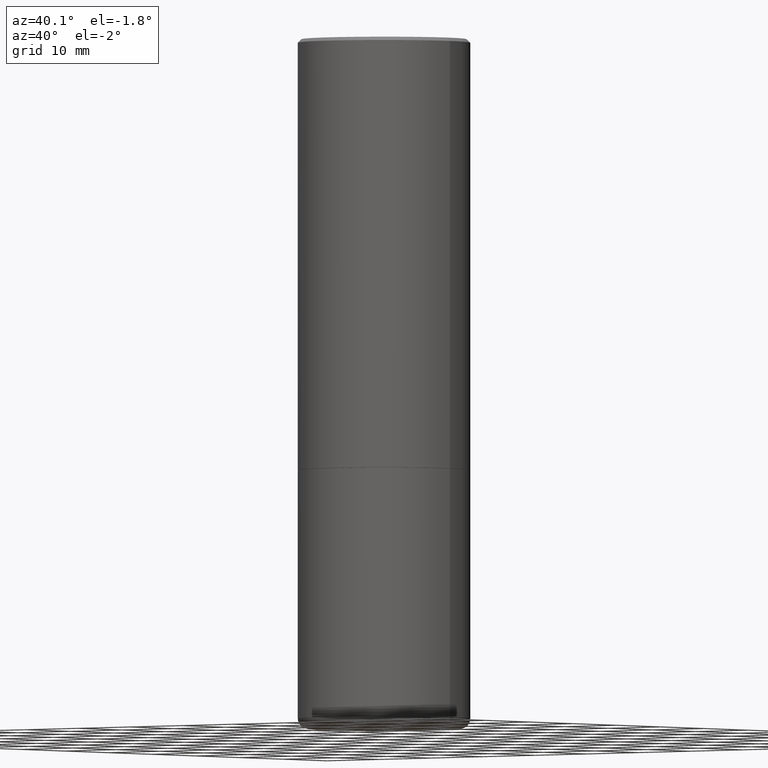
[diagram: clean part render]
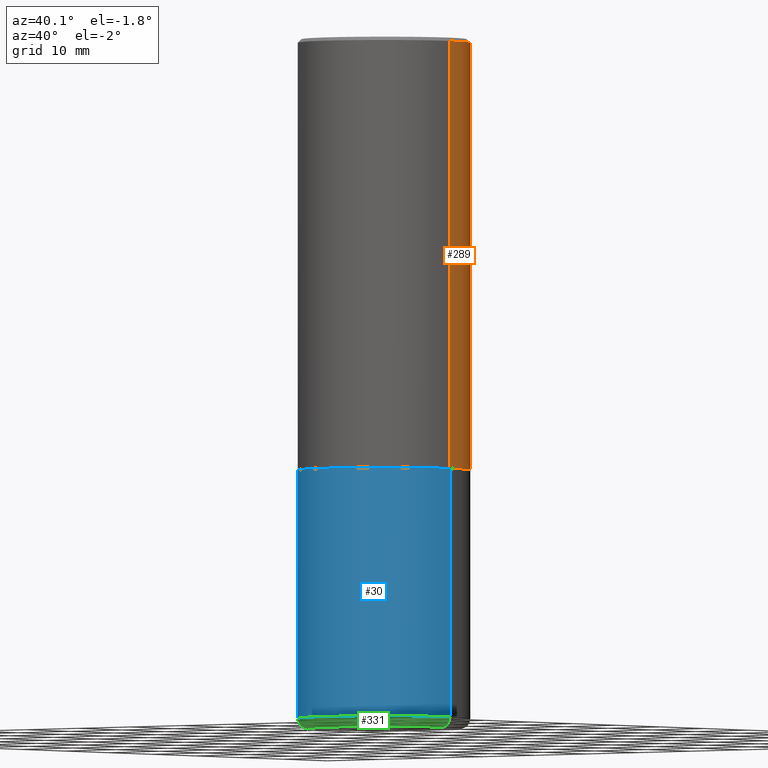
[diagram: same view with three faces highlighted in distinct colors, each labeled with its STEP entity id]
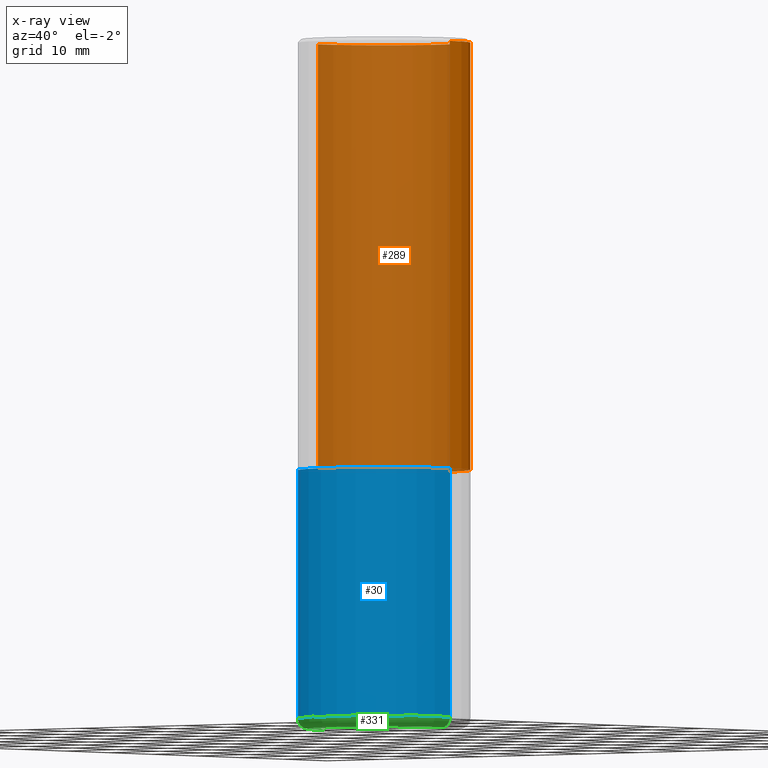
[diagram: x-ray of the same camera — body ghosted, the three highlighted faces saturated]
A machine part, auxiliary view with three faces highlighted in distinct colors.
The next image is the same camera in x-ray (body ghosted, the three faces saturated) — at least one of them is partly hidden behind the body in this view.
Their STEP definitions:

[orange] entity #289 — the highlighted cylindrical surface (partial cylindrical patch) has radius 12.7 mm, axis along (-0, 0, 1).
#17 = ORIENTED_EDGE ( 'NONE', *, *, #19, .T. ) ;
#19 = EDGE_CURVE ( 'NONE', #321, #160, #171, .T. ) ;
#23 = VERTEX_POINT ( 'NONE', #308 ) ;
#43 = CARTESIAN_POINT ( 'NONE',  ( 6.111226546656657010E-29, -8.725211865769021935E-15, -2.499000000000000110 ) ) ;
#125 = DIRECTION ( 'NONE',  ( 1.000000000000000000, -6.982962677686266711E-15, 0.000000000000000000 ) ) ;
#131 = CARTESIAN_POINT ( 'NONE',  ( 4.890937612370301184E-31, -6.982962677686329819E-17, -0.02000000000000011144 ) ) ;
#144 = ORIENTED_EDGE ( 'NONE', *, *, #253, .T. ) ;
#160 = VERTEX_POINT ( 'NONE', #394 ) ;
#164 = ORIENTED_EDGE ( 'NONE', *, *, #390, .F. ) ;
#165 = DIRECTION ( 'NONE',  ( -2.445468806185136597E-29, 3.491481338843145583E-15, 1.000000000000000000 ) ) ;
#170 = DIRECTION ( 'NONE',  ( -2.445468806185136877E-29, 3.491481338843145188E-15, 1.000000000000000000 ) ) ;
#171 = CIRCLE ( 'NONE', #417, 0.5000000000000000000 ) ;
#174 = DIRECTION ( 'NONE',  ( 1.000000000000000000, -6.982962677686265133E-15, 0.000000000000000000 ) ) ;
#197 = ORIENTED_EDGE ( 'NONE', *, *, #238, .F. ) ;
#231 = CYLINDRICAL_SURFACE ( 'NONE', #275, 0.4999999999999998335 ) ;
#238 = EDGE_CURVE ( 'NONE', #23, #395, #424, .T. ) ;
#245 = LINE ( 'NONE', #337, #428 ) ;
#253 = EDGE_CURVE ( 'NONE', #160, #395, #330, .T. ) ;
#265 = CARTESIAN_POINT ( 'NONE',  ( 0.5000000000000000000, -1.221669320461215371E-14, -2.499000000000000110 ) ) ;
#275 = AXIS2_PLACEMENT_3D ( 'NONE', #430, #366, #322 ) ;
#282 = AXIS2_PLACEMENT_3D ( 'NONE', #131, #165, #125 ) ;
#283 = EDGE_LOOP ( 'NONE', ( #17, #144, #197, #164 ) ) ;
#289 = ADVANCED_FACE ( 'NONE', ( #438 ), #231, .T. ) ;
#308 = CARTESIAN_POINT ( 'NONE',  ( 0.4999999999999997224, -3.500078625662627502E-15, -0.02000000000000011144 ) ) ;
#321 = VERTEX_POINT ( 'NONE', #265 ) ;
#322 = DIRECTION ( 'NONE',  ( 1.000000000000000000, -6.982962677686267499E-15, 4.876176775795936353E-29 ) ) ;
#330 = LINE ( 'NONE', #357, #338 ) ;
#337 = CARTESIAN_POINT ( 'NONE',  ( 0.4999999999999998335, -3.491481338843132566E-15, 2.438088387897967336E-29 ) ) ;
#338 = VECTOR ( 'NONE', #353, 39.37007874015748143 ) ;
#353 = DIRECTION ( 'NONE',  ( -2.445468806185136877E-29, 3.491481338843145188E-15, 1.000000000000000000 ) ) ;
#357 = CARTESIAN_POINT ( 'NONE',  ( -0.4999999999999998335, 3.552713678800499746E-15, -2.459467545127452330E-29 ) ) ;
#366 = DIRECTION ( 'NONE',  ( -2.445468806185136597E-29, 3.491481338843145583E-15, 1.000000000000000000 ) ) ;
#383 = CARTESIAN_POINT ( 'NONE',  ( -0.4999999999999997224, 3.421651712066268085E-15, -0.02000000000000011144 ) ) ;
#390 = EDGE_CURVE ( 'NONE', #321, #23, #245, .T. ) ;
#394 = CARTESIAN_POINT ( 'NONE',  ( -0.5000000000000000000, -8.448070674724411945E-16, -2.499000000000000110 ) ) ;
#395 = VERTEX_POINT ( 'NONE', #383 ) ;
#412 = DIRECTION ( 'NONE',  ( -2.445468806185136597E-29, 3.491481338843145583E-15, 1.000000000000000000 ) ) ;
#417 = AXIS2_PLACEMENT_3D ( 'NONE', #43, #412, #174 ) ;
#424 = CIRCLE ( 'NONE', #282, 0.4999999999999997224 ) ;
#428 = VECTOR ( 'NONE', #170, 39.37007874015748143 ) ;
#430 = CARTESIAN_POINT ( 'NONE',  ( 0.000000000000000000, 0.000000000000000000, 0.000000000000000000 ) ) ;
#438 = FACE_OUTER_BOUND ( 'NONE', #283, .T. ) ;

[blue] entity #30 — the highlighted cylindrical surface (partial cylindrical patch) has radius 12.7 mm, axis along (-0, 0, 1).
#4 = CARTESIAN_POINT ( 'NONE',  ( 0.000000000000000000, 0.000000000000000000, 0.000000000000000000 ) ) ;
#14 = ORIENTED_EDGE ( 'NONE', *, *, #374, .T. ) ;
#15 = EDGE_CURVE ( 'NONE', #224, #184, #84, .T. ) ;
#30 = ADVANCED_FACE ( 'NONE', ( #239 ), #370, .T. ) ;
#56 = ORIENTED_EDGE ( 'NONE', *, *, #128, .F. ) ;
#82 = DIRECTION ( 'NONE',  ( -2.445468806185136877E-29, 3.491481338843145188E-15, 1.000000000000000000 ) ) ;
#84 = CIRCLE ( 'NONE', #354, 0.5000000000000000000 ) ;
#91 = CARTESIAN_POINT ( 'NONE',  ( -0.5000000000000000000, -7.689856232274430126E-15, -2.500000000000000000 ) ) ;
#107 = LINE ( 'NONE', #116, #213 ) ;
#116 = CARTESIAN_POINT ( 'NONE',  ( 0.4999999999999998335, -3.491481338843132566E-15, 2.438088387897967336E-29 ) ) ;
#128 = EDGE_CURVE ( 'NONE', #340, #224, #148, .T. ) ;
#132 = CARTESIAN_POINT ( 'NONE',  ( 0.5000000000000000000, -1.222018468595099830E-14, -2.500000000000000000 ) ) ;
#138 = CARTESIAN_POINT ( 'NONE',  ( 6.113672015462842613E-29, -8.728703347107864943E-15, -2.500000000000000000 ) ) ;
#140 = DIRECTION ( 'NONE',  ( -2.445468806185136877E-29, 3.491481338843145188E-15, 1.000000000000000000 ) ) ;
#146 = DIRECTION ( 'NONE',  ( -2.445468806185136597E-29, 3.491481338843145583E-15, 1.000000000000000000 ) ) ;
#148 = LINE ( 'NONE', #386, #292 ) ;
#152 = ORIENTED_EDGE ( 'NONE', *, *, #294, .T. ) ;
#166 = DIRECTION ( 'NONE',  ( 1.000000000000000000, -6.982962677686265922E-15, 0.000000000000000000 ) ) ;
#184 = VERTEX_POINT ( 'NONE', #132 ) ;
#186 = AXIS2_PLACEMENT_3D ( 'NONE', #362, #333, #166 ) ;
#213 = VECTOR ( 'NONE', #140, 39.37007874015748143 ) ;
#224 = VERTEX_POINT ( 'NONE', #91 ) ;
#235 = ORIENTED_EDGE ( 'NONE', *, *, #15, .F. ) ;
#239 = FACE_OUTER_BOUND ( 'NONE', #437, .T. ) ;
#240 = VERTEX_POINT ( 'NONE', #324 ) ;
#267 = DIRECTION ( 'NONE',  ( -2.445468806185136597E-29, 3.491481338843145583E-15, 1.000000000000000000 ) ) ;
#277 = DIRECTION ( 'NONE',  ( 1.000000000000000000, -6.982962677686267499E-15, 4.876176775795936353E-29 ) ) ;
#292 = VECTOR ( 'NONE', #82, 39.37007874015748143 ) ;
#294 = EDGE_CURVE ( 'NONE', #340, #240, #397, .T. ) ;
#295 = AXIS2_PLACEMENT_3D ( 'NONE', #4, #146, #277 ) ;
#324 = CARTESIAN_POINT ( 'NONE',  ( 0.4999999999999997780, -1.724791781388512421E-14, -3.939999999999999947 ) ) ;
#333 = DIRECTION ( 'NONE',  ( -2.445468806185136597E-29, 3.491481338843145583E-15, 1.000000000000000000 ) ) ;
#339 = DIRECTION ( 'NONE',  ( 1.000000000000000000, -6.982962677686269077E-15, 0.000000000000000000 ) ) ;
#340 = VERTEX_POINT ( 'NONE', #381 ) ;
#354 = AXIS2_PLACEMENT_3D ( 'NONE', #138, #267, #339 ) ;
#362 = CARTESIAN_POINT ( 'NONE',  ( 9.635147096369438236E-29, -1.375643647504199401E-14, -3.939999999999999947 ) ) ;
#370 = CYLINDRICAL_SURFACE ( 'NONE', #295, 0.4999999999999998335 ) ;
#374 = EDGE_CURVE ( 'NONE', #240, #184, #107, .T. ) ;
#381 = CARTESIAN_POINT ( 'NONE',  ( -0.4999999999999997780, -1.020372279624149466E-14, -3.939999999999999947 ) ) ;
#386 = CARTESIAN_POINT ( 'NONE',  ( -0.4999999999999998335, 3.552713678800499746E-15, -2.459467545127452330E-29 ) ) ;
#397 = CIRCLE ( 'NONE', #186, 0.4999999999999997780 ) ;
#437 = EDGE_LOOP ( 'NONE', ( #56, #152, #14, #235 ) ) ;

[green] entity #331 — the highlighted toroidal blend (fillet) surface has major radius 11.176 mm and minor (blend) radius 1.524 mm.
#20 = EDGE_LOOP ( 'NONE', ( #371, #120, #74, #139 ) ) ;
#28 = CIRCLE ( 'NONE', #129, 0.05999999999999976880 ) ;
#42 = DIRECTION ( 'NONE',  ( 1.000000000000000000, -6.982962677686265922E-15, 0.000000000000000000 ) ) ;
#51 = EDGE_CURVE ( 'NONE', #52, #240, #373, .T. ) ;
#52 = VERTEX_POINT ( 'NONE', #343 ) ;
#68 = CARTESIAN_POINT ( 'NONE',  ( -0.4389528556137630710, -1.090070204118670657E-14, -3.999990861709382894 ) ) ;
#69 = DIRECTION ( 'NONE',  ( 1.000000000000000000, -6.982962677686265922E-15, 4.883557194083112340E-29 ) ) ;
#74 = ORIENTED_EDGE ( 'NONE', *, *, #51, .T. ) ;
#87 = EDGE_CURVE ( 'NONE', #244, #340, #28, .T. ) ;
#104 = AXIS2_PLACEMENT_3D ( 'NONE', #181, #420, #69 ) ;
#120 = ORIENTED_EDGE ( 'NONE', *, *, #378, .T. ) ;
#129 = AXIS2_PLACEMENT_3D ( 'NONE', #183, #427, #153 ) ;
#139 = ORIENTED_EDGE ( 'NONE', *, *, #294, .F. ) ;
#145 = AXIS2_PLACEMENT_3D ( 'NONE', #203, #372, #42 ) ;
#153 = DIRECTION ( 'NONE',  ( -1.000000000000000000, 7.105427357600985293E-15, 0.000000000000000000 ) ) ;
#166 = DIRECTION ( 'NONE',  ( 1.000000000000000000, -6.982962677686265922E-15, 0.000000000000000000 ) ) ;
#181 = CARTESIAN_POINT ( 'NONE',  ( 9.635147096369438236E-29, -1.375643647504199401E-14, -3.939999999999999947 ) ) ;
#183 = CARTESIAN_POINT ( 'NONE',  ( -0.4400000000000000022, -1.063004843769755357E-14, -3.939999999999999947 ) ) ;
#186 = AXIS2_PLACEMENT_3D ( 'NONE', #362, #333, #166 ) ;
#203 = CARTESIAN_POINT ( 'NONE',  ( 9.781852877335900786E-29, -1.396589344920142388E-14, -3.999990861709382894 ) ) ;
#208 = DIRECTION ( 'NONE',  ( -6.982962677686266711E-15, -1.000000000000000000, 3.491481338843145583E-15 ) ) ;
#209 = DIRECTION ( 'NONE',  ( 1.000000000000000000, -6.982962677686262766E-15, 0.000000000000000000 ) ) ;
#237 = FACE_OUTER_BOUND ( 'NONE', #20, .T. ) ;
#240 = VERTEX_POINT ( 'NONE', #324 ) ;
#244 = VERTEX_POINT ( 'NONE', #68 ) ;
#294 = EDGE_CURVE ( 'NONE', #340, #240, #397, .T. ) ;
#310 = AXIS2_PLACEMENT_3D ( 'NONE', #377, #208, #209 ) ;
#324 = CARTESIAN_POINT ( 'NONE',  ( 0.4999999999999997780, -1.724791781388512421E-14, -3.939999999999999947 ) ) ;
#331 = ADVANCED_FACE ( 'NONE', ( #237 ), #435, .T. ) ;
#333 = DIRECTION ( 'NONE',  ( -2.445468806185136597E-29, 3.491481338843145583E-15, 1.000000000000000000 ) ) ;
#340 = VERTEX_POINT ( 'NONE', #381 ) ;
#343 = CARTESIAN_POINT ( 'NONE',  ( 0.4389528556137630710, -1.697732863625574306E-14, -3.999990861709382894 ) ) ;
#362 = CARTESIAN_POINT ( 'NONE',  ( 9.635147096369438236E-29, -1.375643647504199401E-14, -3.939999999999999947 ) ) ;
#371 = ORIENTED_EDGE ( 'NONE', *, *, #87, .F. ) ;
#372 = DIRECTION ( 'NONE',  ( -2.445468806185136597E-29, 3.491481338843145583E-15, 1.000000000000000000 ) ) ;
#373 = CIRCLE ( 'NONE', #310, 0.05999999999999976880 ) ;
#377 = CARTESIAN_POINT ( 'NONE',  ( 0.4400000000000000022, -1.682894005322395074E-14, -3.939999999999999947 ) ) ;
#378 = EDGE_CURVE ( 'NONE', #244, #52, #423, .T. ) ;
#381 = CARTESIAN_POINT ( 'NONE',  ( -0.4999999999999997780, -1.020372279624149466E-14, -3.939999999999999947 ) ) ;
#397 = CIRCLE ( 'NONE', #186, 0.4999999999999997780 ) ;
#420 = DIRECTION ( 'NONE',  ( -2.445468806185136597E-29, 3.491481338843145583E-15, 1.000000000000000000 ) ) ;
#423 = CIRCLE ( 'NONE', #145, 0.4389528556137634596 ) ;
#427 = DIRECTION ( 'NONE',  ( 7.105427357601001859E-15, 1.000000000000000000, -3.491481338843145583E-15 ) ) ;
#435 = TOROIDAL_SURFACE ( 'NONE', #104, 0.4400000000000000022, 0.05999999999999975492 ) ;